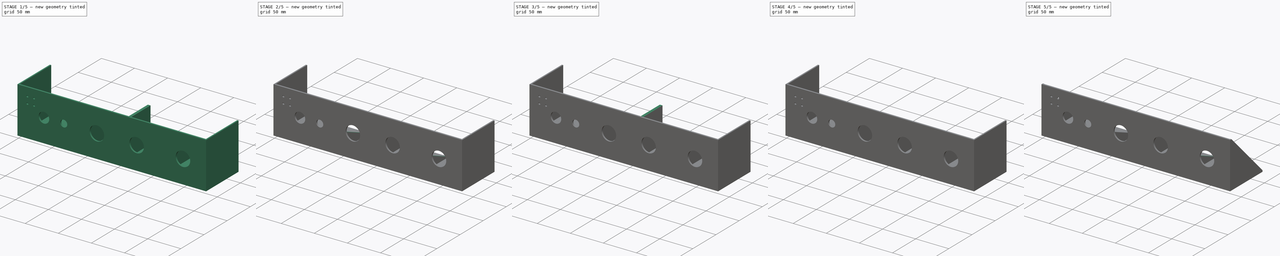
[diagram: build sequence overview — one tinted view per stage of 5, left to right]
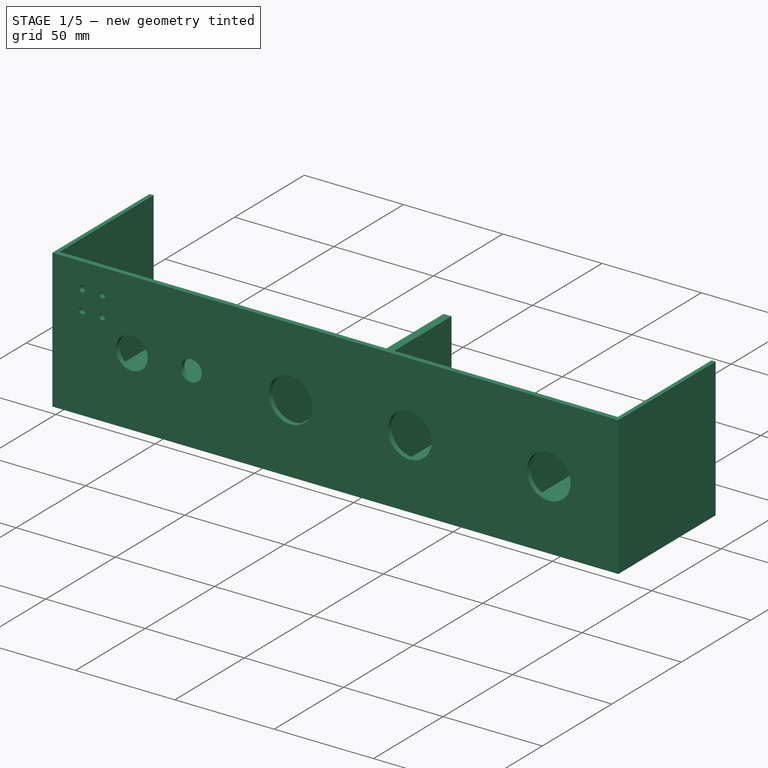
[diagram: stage 1 of 5 — iso view after this stage's code; geometry added in this stage tinted green]
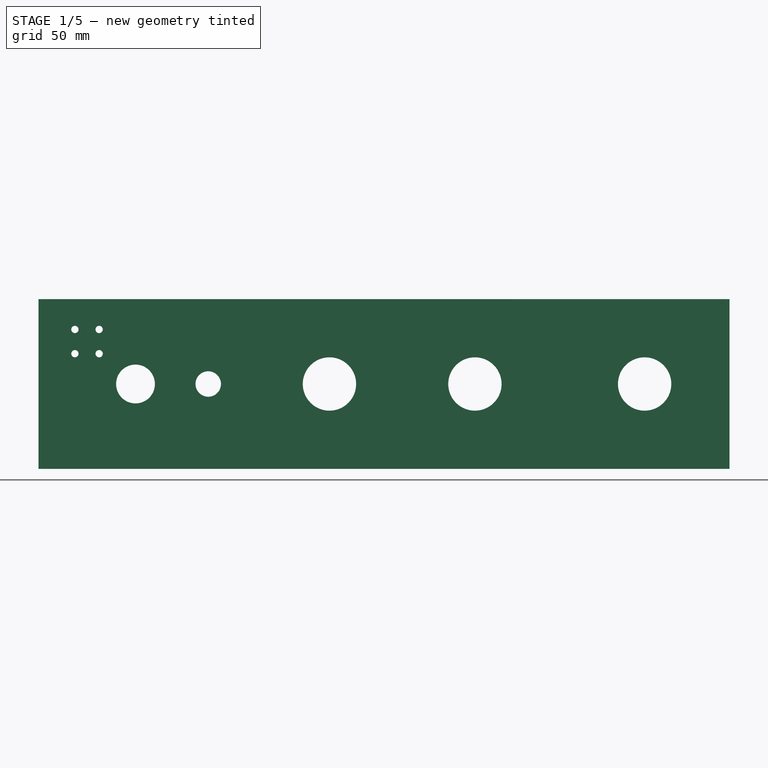
[diagram: stage 1 of 5 — front view after this stage's code; geometry added in this stage tinted green]
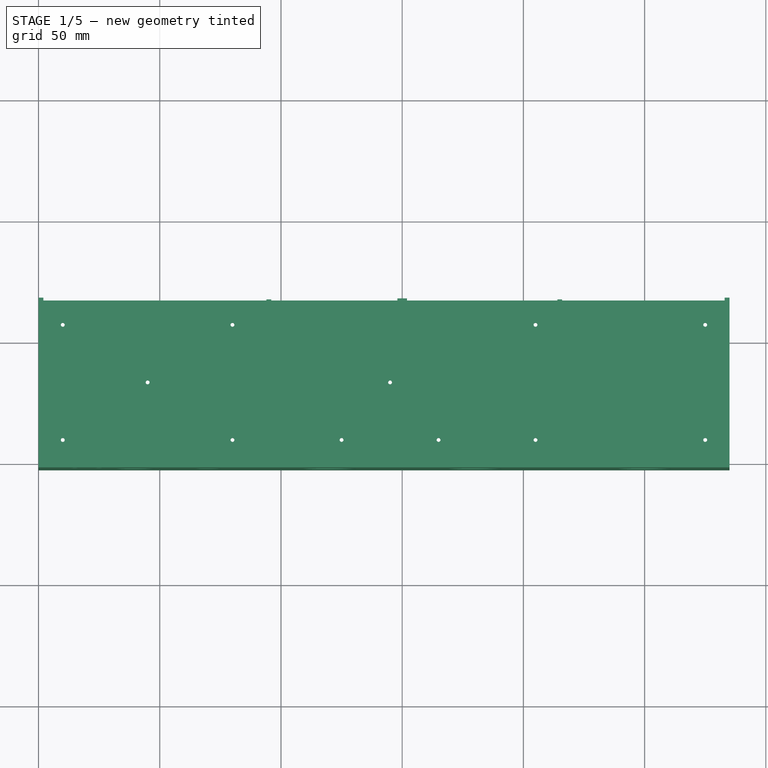
[diagram: stage 1 of 5 — top view after this stage's code; geometry added in this stage tinted green]
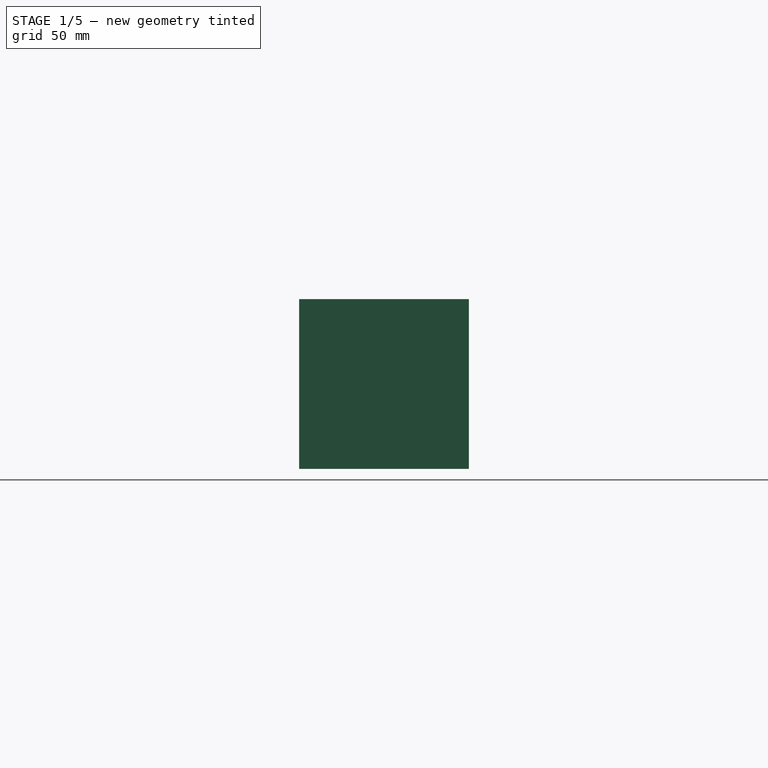
[diagram: stage 1 of 5 — right view after this stage's code; geometry added in this stage tinted green]
FCSTD DOCUMENT  (FreeCAD 0.19R24276 (Git))
Label: schalter_blende
License: All rights reserved
LicenseURL: http://en.wikipedia.org/wiki/All_rights_reserved
objects: Sketcher::SketchObject×10, PartDesign::Chamfer×6, PartDesign::Pad×4, PartDesign::Hole×4, PartDesign::Pocket×2, PartDesign::Body×2, App::Part×1
note: 44 computed .brp shape members not serialized (recipe doc carries the construction recipe); baked Part::Feature solids carry a one-line shape summary decoded from their .brp

FEATURE [Sketcher::SketchObject] Sketch005  label="Loecher001"
  FullyConstrained = true
  MapMode = 5
  Placement = pos=(0,0,0) rot=(1,0,0;1.5708rad)
  Support = -> [XZ_Plane002]
  expr: Constraints[23] = 30 + 20
  sketch-geometry (29):
    g0: LineSegment StartX=0 StartY=0 StartZ=0 EndX=215 EndY=0 EndZ=0
    g1: LineSegment StartX=215 StartY=70 StartZ=0 EndX=0 EndY=70 EndZ=0
    g2: LineSegment StartX=0 StartY=70 StartZ=0 EndX=0 EndY=0 EndZ=0
    g3: Circle CenterX=40 CenterY=35 CenterZ=0 NormalX=0 NormalY=0 NormalZ=1 AngleXU=0 Radius=8
    g4: Circle CenterX=70 CenterY=35 CenterZ=0 NormalX=0 NormalY=0 NormalZ=1 AngleXU=0 Radius=5.25
    g5: Circle CenterX=120 CenterY=35 CenterZ=0 NormalX=0 NormalY=0 NormalZ=1 AngleXU=0 Radius=11
    g6: Circle CenterX=180 CenterY=35 CenterZ=0 NormalX=0 NormalY=0 NormalZ=1 AngleXU=0 Radius=11
    g7: LineSegment StartX=0 StartY=35 StartZ=0 EndX=215 EndY=35 EndZ=0
    g8: Circle CenterX=120 CenterY=35 CenterZ=0 NormalX=0 NormalY=0 NormalZ=1 AngleXU=0 Radius=30
    g9: Circle CenterX=180 CenterY=35 CenterZ=0 NormalX=0 NormalY=0 NormalZ=1 AngleXU=0 Radius=15
    g10: LineSegment StartX=215 StartY=0 StartZ=0 EndX=285 EndY=0 EndZ=0
    g11: LineSegment StartX=285 StartY=0 StartZ=0 EndX=285 EndY=70 EndZ=0
    g12: LineSegment StartX=215 StartY=70 StartZ=0 EndX=285 EndY=70 EndZ=0
    g13: Circle CenterX=250 CenterY=35 CenterZ=0 NormalX=0 NormalY=0 NormalZ=1 AngleXU=0 Radius=11
    g14: LineSegment StartX=215 StartY=35 StartZ=0 EndX=285 EndY=35 EndZ=0
    g15: Circle CenterX=250 CenterY=35 CenterZ=0 NormalX=0 NormalY=0 NormalZ=1 AngleXU=0 Radius=14.5
    g16: LineSegment StartX=215 StartY=0 StartZ=0 EndX=215 EndY=70 EndZ=0
    g17: Circle CenterX=15 CenterY=57.5 CenterZ=0 NormalX=0 NormalY=0 NormalZ=1 AngleXU=0 Radius=1.5
    g18: Circle CenterX=25 CenterY=57.5 CenterZ=0 NormalX=0 NormalY=0 NormalZ=1 AngleXU=0 Radius=1.5
    g19: Circle CenterX=15 CenterY=47.5 CenterZ=0 NormalX=0 NormalY=0 NormalZ=1 AngleXU=0 Radius=1.5
    g20: Circle CenterX=25 CenterY=47.5 CenterZ=0 NormalX=0 NormalY=0 NormalZ=1 AngleXU=0 Radius=1.5
    g21: LineSegment StartX=25 StartY=47.5 StartZ=0 EndX=15 EndY=47.5 EndZ=0
    g22: LineSegment StartX=15 StartY=57.5 StartZ=0 EndX=25 EndY=57.5 EndZ=0
    g23: LineSegment StartX=25 StartY=57.5 StartZ=0 EndX=25 EndY=47.5 EndZ=0
    g24: LineSegment StartX=15 StartY=47.5 StartZ=0 EndX=15 EndY=57.5 EndZ=0
    g25: LineSegment StartX=20 StartY=35 StartZ=0 EndX=20 EndY=70 EndZ=0
    g26: GeomPoint X=20 Y=47.5 Z=0
    g27: LineSegment StartX=20 StartY=52.5 StartZ=0 EndX=0 EndY=52.5 EndZ=0
    g28: GeomPoint X=15 Y=52.5 Z=0
  constraints (74):
    c: Coincident(g1,g2)
    c: Coincident(g2,g0)
    c: Horizontal(g0)
    c: Horizontal(g1)
    c: Vertical(g2)
    c: Coincident(g0,g-1)
    c: Horizontal(g7)
    c: Symmetric(g1,g0,g7)
    c: PointOnObject(g3,g7)
    c: PointOnObject(g4,g7)
    c: PointOnObject(g5,g7)
    c: PointOnObject(g6,g7)
    c: DistanceY(g2,g2) = 70
    c: Radius(g3) = 8
    c: Radius(g4) = 5.25
    c: Radius(g5) = 11
    c: Radius(g6) = 11
    c: Radius(g8) = 30
    c: Radius(g9) = 15
    c: Coincident(g9,g6)
    c: Coincident(g8,g5)
    c: Distance(g3,g2) = 40
    c: DistanceX(g3,g4) = 30
    c: DistanceX(g4,g5) = 50
    c: DistanceX(g5,g6) = 60
    c: DistanceX(g6,g7) = 35
    c: Coincident(g10,g0)
    c: PointOnObject(g10,g-1)
    c: Coincident(g11,g10)
    c: Vertical(g11)
    c: Coincident(g12,g1)
    c: Coincident(g12,g11)
    c: Horizontal(g12)
    c: Coincident(g14,g7)
    c: PointOnObject(g14,g11)
    c: Horizontal(g14)
    c: PointOnObject(g13,g14)
    c: DistanceX(g7,g13) = 35
    c: DistanceX(g13,g14) = 35
    c: Radius(g13) = 11
    c: Coincident(g15,g13)
    c: Radius(g15) = 14.5
    c: Coincident(g16,g0)
    c: Coincident(g16,g1)
    c: Vertical(g16)
    c: PointOnObject(g7,g16)
    c: Equal(g20,g19)
    c: Equal(g19,g17)
    c: Equal(g17,g18)
    c: Radius(g17) = 1.5
    c: Coincident(g21,g20)
    c: Coincident(g21,g19)
    c: Coincident(g22,g17)
    c: Coincident(g22,g18)
    c: Horizontal(g22)
    c: Horizontal(g21)
    c: Coincident(g23,g18)
    c: Coincident(g23,g20)
    c: Vertical(g23)
    c: Coincident(g24,g19)
    c: Coincident(g24,g17)
    c: Vertical(g24)
    c: Distance(g21) = 10
    c: Equal(g23,g21)
    c: PointOnObject(g25,g1)
    c: Vertical(g25)
    c: Symmetric(g7,g3,g25)
    c: Symmetric(g19,g20,g26)
    c: PointOnObject(g26,g25)
    c: PointOnObject(g27,g2)
    c: Horizontal(g27)
    c: Symmetric(g25,g25,g27)
    c: Symmetric(g19,g17,g28)
    c: PointOnObject(g28,g27)
FEATURE [PartDesign::Pad] Pad002
  AllowMultiFace = false
  Direction = (1,1,1)
  Length = 2.5
  Length2 = 100
  Placement = pos=(0,0,0) rot=(1,0,0;1.5708rad)
  Profile = -> Sketch005
  Type = 0
FEATURE [Sketcher::SketchObject] Sketch006  label="Querstreben001"
  ExternalGeometry = -> [Pad002]
  FullyConstrained = false
  MapMode = 5
  Placement = pos=(0,-1e-16,0) rot=(-1,0,0;1.5708rad)
  Support = -> [Pad002]
  sketch-geometry (26):
    g0: LineSegment StartX=0 StartY=0 StartZ=0 EndX=0 EndY=-70 EndZ=0
    g1: LineSegment StartX=283 StartY=-2 StartZ=0 EndX=216 EndY=-2 EndZ=0
    g2: LineSegment StartX=216 StartY=-2 StartZ=0 EndX=216 EndY=-30 EndZ=0
    g3: LineSegment StartX=216 StartY=-30 StartZ=0 EndX=214 EndY=-30 EndZ=0
    g4: LineSegment StartX=214 StartY=-30 StartZ=0 EndX=214 EndY=-2 EndZ=0
    g5: LineSegment StartX=214 StartY=-2 StartZ=0 EndX=152 EndY=-2 EndZ=0
    g6: LineSegment StartX=152 StartY=-2 StartZ=0 EndX=152 EndY=-55 EndZ=0
    g7: LineSegment StartX=152 StartY=-55 StartZ=0 EndX=148 EndY=-55 EndZ=0
    g8: LineSegment StartX=148 StartY=-55 StartZ=0 EndX=148 EndY=-2 EndZ=0
    g9: LineSegment StartX=148 StartY=-2 StartZ=0 EndX=96 EndY=-2 EndZ=0
    g10: LineSegment StartX=96 StartY=-2 StartZ=0 EndX=96 EndY=-30 EndZ=0
    g11: LineSegment StartX=96 StartY=-30 StartZ=0 EndX=94 EndY=-30 EndZ=0
    g12: LineSegment StartX=94 StartY=-30 StartZ=0 EndX=94 EndY=-2 EndZ=0
    g13: LineSegment StartX=96 StartY=-30 StartZ=0 EndX=285 EndY=-30 EndZ=0
    g14: LineSegment StartX=250 StartY=-35 StartZ=0 EndX=70 EndY=-35 EndZ=0
    g15: GeomPoint X=215 Y=-35 Z=0
    g16: GeomPoint X=150 Y=-35 Z=0
    g17: GeomPoint X=95 Y=-35 Z=0
    g18: LineSegment StartX=0 StartY=-2 StartZ=0 EndX=285 EndY=-2 EndZ=0
    g19: LineSegment StartX=2 StartY=-70 StartZ=0 EndX=2 EndY=-2 EndZ=0
    g20: LineSegment StartX=2 StartY=-2 StartZ=0 EndX=94 EndY=-2 EndZ=0
    g21: LineSegment StartX=283 StartY=-2 StartZ=0 EndX=283 EndY=-70 EndZ=0
    g22: LineSegment StartX=283 StartY=-70 StartZ=0 EndX=285 EndY=-70 EndZ=0
    g23: LineSegment StartX=285 StartY=-70 StartZ=0 EndX=285 EndY=0 EndZ=0
    g24: LineSegment StartX=0 StartY=0 StartZ=0 EndX=285 EndY=0 EndZ=0
    g25: LineSegment StartX=0 StartY=-70 StartZ=0 EndX=2 EndY=-70 EndZ=0
  constraints (56):
    c: Vertical(g0)
    c: Coincident(g2,g1)
    c: Vertical(g2)
    c: Coincident(g3,g2)
    c: Horizontal(g3)
    c: Coincident(g4,g3)
    c: Vertical(g4)
    c: Coincident(g5,g4)
    c: Coincident(g6,g5)
    c: Vertical(g6)
    c: Coincident(g7,g6)
    c: Horizontal(g7)
    c: Coincident(g8,g7)
    c: Vertical(g8)
    c: Coincident(g9,g8)
    c: Coincident(g10,g9)
    c: Vertical(g10)
    c: Coincident(g11,g10)
    c: Coincident(g12,g11)
    c: Vertical(g12)
    c: Horizontal(g11)
    c: Coincident(g13,g10)
    c: Horizontal(g13)
    c: DistanceX(g11,g11) = 2
    c: Distance(g7) = 4
    c: DistanceX(g3,g3) = 2
    c: PointOnObject(g2,g13)
    c: DistanceX(g3,g15) = 1
    c: DistanceX(g7,g16) = 2
    c: DistanceX(g11,g17) = 1
    c: PointOnObject(g18,g-2)
    c: Horizontal(g18)
    c: PointOnObject(g1,g18)
    c: PointOnObject(g4,g18)
    c: Horizontal(g1)
    c: Horizontal(g5)
    c: Horizontal(g9)
    c: PointOnObject(g8,g18)
    c: PointOnObject(g12,g18)
    c: Coincident(g-1,g0)
    c: PointOnObject(g19,g18)
    c: Vertical(g19)
    c: Coincident(g20,g19)
    c: Coincident(g12,g20)
    c: Coincident(g21,g1)
    c: Vertical(g21)
    c: Coincident(g22,g21)
    c: Coincident(g23,g22)
    c: DistanceX(g22,g22) = 2
    c: PointOnObject(g13,g23)
    c: DistanceY(g13,g23) = 30
    c: Coincident(g24,g0)
    c: Coincident(g24,g23)
    c: Coincident(g25,g0)
    c: Coincident(g25,g19)
    c: Distance(g25) = 2
FEATURE [PartDesign::Pad] Pad003
  AllowMultiFace = false
  BaseFeature = -> Pad002
  Direction = (0,1,1)
  Length = 67.5
  Length2 = 100
  Placement = pos=(0,0,0) rot=(1,0,0;1.5708rad)
  Profile = -> Sketch006
  Type = 0
  expr: Length = 70 - 2.5
FEATURE [Sketcher::SketchObject] Sketch007
  ExternalGeometry = -> [Pad003]
  FullyConstrained = false
  MapMode = 5
  Placement = pos=(0,0,0) rot=(1,0,0;3.14159rad)
  sketch-geometry (29):
    g0: GeomPoint X=10 Y=-10 Z=0
    g1: GeomPoint X=10 Y=-57.5 Z=0
    g2: GeomPoint X=45 Y=-33.75 Z=0
    g3: GeomPoint X=80 Y=-10 Z=0
    g4: GeomPoint X=80 Y=-57.5 Z=0
    g5: GeomPoint X=145 Y=-33.75 Z=0
    g6: GeomPoint X=205 Y=-10 Z=0
    g7: GeomPoint X=205 Y=-57.5 Z=0
    g8: LineSegment StartX=10 StartY=-10 StartZ=0 EndX=205 EndY=-10 EndZ=0
    g9: LineSegment StartX=80 StartY=-57.5 StartZ=0 EndX=80 EndY=-10 EndZ=0
    g10: LineSegment StartX=45 StartY=-33.75 StartZ=0 EndX=145 EndY=-33.75 EndZ=0
    g11: LineSegment StartX=10 StartY=-57.5 StartZ=0 EndX=205 EndY=-57.5 EndZ=0
    g12: GeomPoint X=80 Y=-33.75 Z=0
    g13: LineSegment StartX=205 StartY=-57.5 StartZ=0 EndX=205 EndY=-10 EndZ=0
    g14: Circle CenterX=10 CenterY=-10 CenterZ=0 NormalX=0 NormalY=0 NormalZ=1 AngleXU=0 Radius=1.5
    g15: Circle CenterX=10 CenterY=-57.5 CenterZ=0 NormalX=0 NormalY=0 NormalZ=1 AngleXU=0 Radius=1.5
    g16: Circle CenterX=80 CenterY=-57.5 CenterZ=0 NormalX=0 NormalY=0 NormalZ=1 AngleXU=0 Radius=1.5
    g17: Circle CenterX=45 CenterY=-33.75 CenterZ=0 NormalX=0 NormalY=0 NormalZ=1 AngleXU=0 Radius=1.5
    g18: Circle CenterX=80 CenterY=-10 CenterZ=0 NormalX=0 NormalY=0 NormalZ=1 AngleXU=0 Radius=1.5
    g19: Circle CenterX=145 CenterY=-33.75 CenterZ=0 NormalX=0 NormalY=0 NormalZ=1 AngleXU=0 Radius=1.5
    g20: Circle CenterX=205 CenterY=-57.5 CenterZ=0 NormalX=0 NormalY=0 NormalZ=1 AngleXU=0 Radius=1.5
    g21: Circle CenterX=205 CenterY=-10 CenterZ=0 NormalX=0 NormalY=0 NormalZ=1 AngleXU=0 Radius=1.5
    g22: Circle CenterX=125 CenterY=-10 CenterZ=0 NormalX=0 NormalY=0 NormalZ=1 AngleXU=0 Radius=1.5
    g23: Circle CenterX=165 CenterY=-10 CenterZ=0 NormalX=0 NormalY=0 NormalZ=1 AngleXU=0 Radius=1.5
    g24: Circle CenterX=275 CenterY=-10 CenterZ=0 NormalX=0 NormalY=0 NormalZ=1 AngleXU=0 Radius=1.5
    g25: Circle CenterX=275 CenterY=-57.5 CenterZ=0 NormalX=0 NormalY=0 NormalZ=1 AngleXU=0 Radius=1.5
    g26: LineSegment StartX=205 StartY=-10 StartZ=0 EndX=275 EndY=-10 EndZ=0
    g27: LineSegment StartX=205 StartY=-57.5 StartZ=0 EndX=275 EndY=-57.5 EndZ=0
    g28: LineSegment StartX=275 StartY=-57.5 StartZ=0 EndX=275 EndY=-10 EndZ=0
  constraints (58):
    c: Coincident(g8,g0)
    c: Coincident(g8,g6)
    c: Horizontal(g8)
    c: PointOnObject(g3,g8)
    c: Coincident(g9,g4)
    c: Vertical(g9)
    c: Coincident(g9,g3)
    c: Coincident(g10,g2)
    c: Coincident(g10,g5)
    c: Horizontal(g10)
    c: Coincident(g11,g1)
    c: Coincident(g11,g7)
    c: Horizontal(g11)
    c: PointOnObject(g4,g11)
    c: PointOnObject(g12,g10)
    c: Symmetric(g4,g3,g12)
    c: DistanceX(g-1,g2) = 45
    c: DistanceX(g-1,g0) = 10
    c: DistanceX(g-2,g3) = 80
    c: DistanceX(g-2,g1) = 10
    c: Coincident(g13,g7)
    c: Coincident(g13,g6)
    c: Vertical(g13)
    c: Coincident(g15,g1)
    c: Coincident(g16,g4)
    c: Coincident(g17,g2)
    c: Coincident(g18,g3)
    c: Coincident(g20,g7)
    c: Coincident(g21,g6)
    c: Coincident(g0,g14)
    c: Equal(g14,g15)
    c: Equal(g15,g17)
    c: Equal(g17,g16)
    c: Equal(g16,g18)
    c: Equal(g18,g19)
    c: Equal(g19,g20)
    c: Equal(g20,g21)
    c: Radius(g14) = 1.5
    c: Coincident(g19,g5)
    c: PointOnObject(g22,g8)
    c: Equal(g23,g22)
    c: Equal(g22,g19)
    c: Symmetric(g6,g22,g23)
    c: DistanceX(g23,g6) = 40
    c: Equal(g25,g20)
    c: Equal(g24,g21)
    c: Coincident(g26,g21)
    c: Coincident(g26,g24)
    c: Horizontal(g26)
    c: Coincident(g27,g20)
    c: Coincident(g27,g25)
    c: Horizontal(g27)
    c: Coincident(g28,g25)
    c: Coincident(g28,g24)
    c: Vertical(g28)
    c: Distance(g21,g24) = 70
    c: DistanceY(g-1,g14) = -10
    c: Distance(g19,g13) = 60
FEATURE [PartDesign::Hole] Hole002
  AllowMultiFace = false
  BaseFeature = -> Pad003
  Depth = 25
  DepthType = 0
  Diameter = 1.6
  DrillForDepth = false
  DrillPoint = 1
  DrillPointAngle = 118
  HoleCutCountersinkAngle = 90
  HoleCutCustomValues = false
  HoleCutDepth = 0
  HoleCutDiameter = 3
  HoleCutType = 0
  ModelActualThread = false
  Placement = pos=(0,0,0) rot=(1,0,0;1.5708rad)
  Profile = -> Sketch007
  Tapered = false
  TaperedAngle = 90
  ThreadAngle = 60
  ThreadClass = 0
  ThreadCutOffInner = 0.032476
  ThreadCutOffOuter = 0.0649519
  ThreadDirection = 0
  ThreadFit = 0
  ThreadPitch = 0.3
  ThreadSize = 3
  ThreadType = 1
  Threaded = false
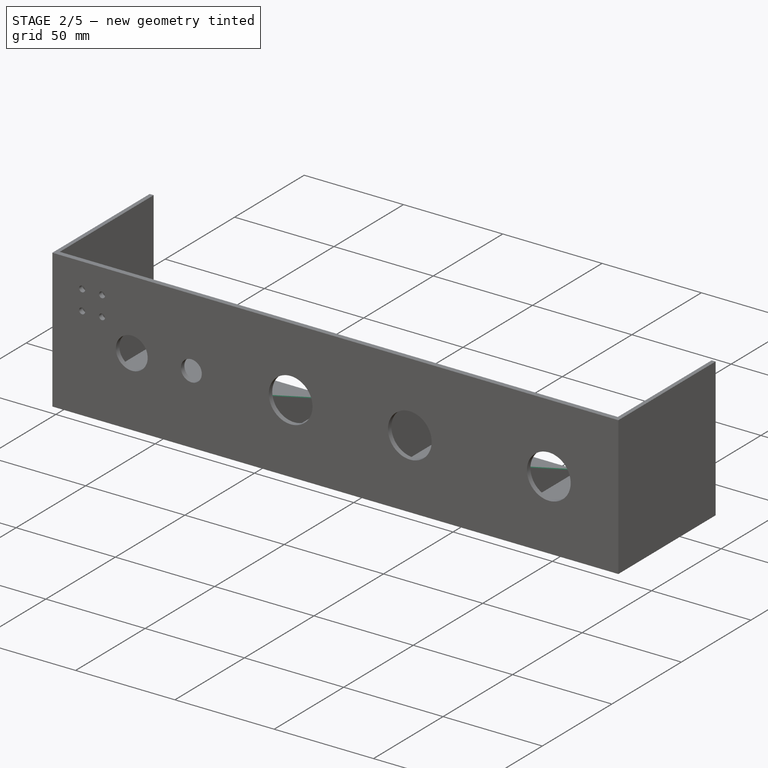
[diagram: stage 2 of 5 — iso view after this stage's code; geometry added in this stage tinted green]
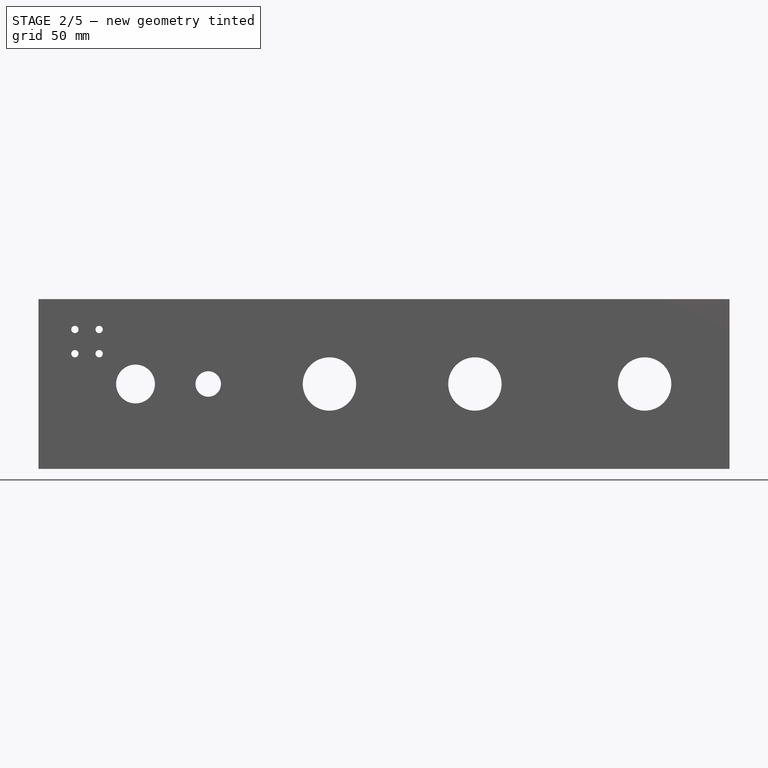
[diagram: stage 2 of 5 — front view after this stage's code; geometry added in this stage tinted green]
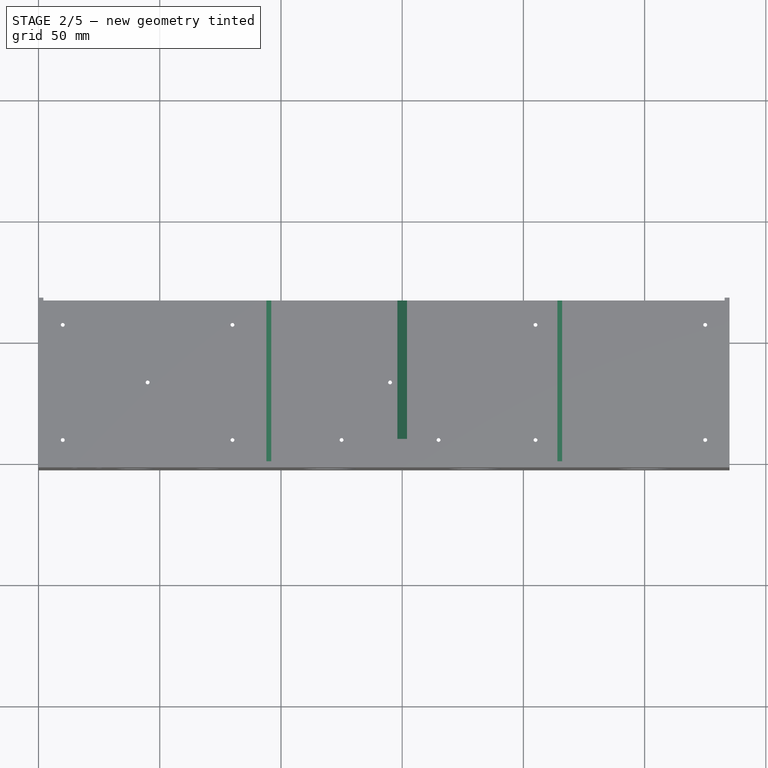
[diagram: stage 2 of 5 — top view after this stage's code; geometry added in this stage tinted green]
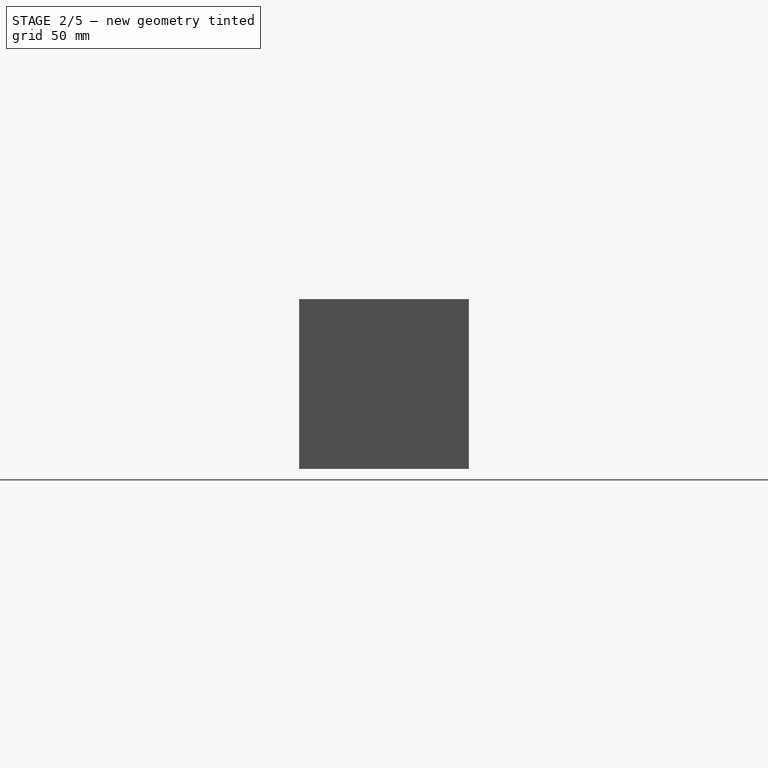
[diagram: stage 2 of 5 — right view after this stage's code; geometry added in this stage tinted green]
FEATURE [Sketcher::SketchObject] Sketch008
  FullyConstrained = false
  MapMode = 5
  Placement = pos=(152,0,0) rot=(0.707107,0,0.707107;3.14159rad)
  sketch-geometry (3):
    g0: Circle CenterX=47.5 CenterY=-7.5 CenterZ=0 NormalX=0 NormalY=0 NormalZ=1 AngleXU=0 Radius=1.5
    g1: Circle CenterX=9.5 CenterY=-7.5 CenterZ=0 NormalX=0 NormalY=0 NormalZ=1 AngleXU=0 Radius=1.5
    g2: LineSegment StartX=9.5 StartY=-7.5 StartZ=0 EndX=47.5 EndY=-7.5 EndZ=0
  constraints (6):
    c: Equal(g1,g0)
    c: Radius(g0) = 1.5
    c: Coincident(g2,g1)
    c: Coincident(g2,g0)
    c: Horizontal(g2)
    c: DistanceY(g0,g-1) = 7.5
FEATURE [PartDesign::Hole] Hole003
  BaseFeature = -> Hole002
  Depth = 25
  DepthType = 0
  Diameter = 2
  DrillForDepth = false
  DrillPoint = 0
  DrillPointAngle = 118
  HoleCutCountersinkAngle = 90
  HoleCutCustomValues = false
  HoleCutDepth = 0
  HoleCutDiameter = 6.1
  HoleCutType = 0
  ModelActualThread = false
  Placement = pos=(0,0,0) rot=(1,0,0;1.5708rad)
  Profile = -> Sketch008
  Tapered = false
  TaperedAngle = 90
  ThreadAngle = 0
  ThreadClass = 0
  ThreadCutOffInner = 0
  ThreadCutOffOuter = 0
  ThreadDirection = 0
  ThreadFit = 0
  ThreadPitch = 0
  ThreadSize = 0
  ThreadType = 0
  Threaded = false
FEATURE [PartDesign::Chamfer] Chamfer005
  Angle = 45
  Base = -> Hole003 [Edge83]
  BaseFeature = -> Hole003
  ChamferType = 1
  FlipDirection = false
  Placement = pos=(0,0,0) rot=(1,0,0;1.5708rad)
  Size = 58
  Size2 = 53
  SupportTransform = false
FEATURE [PartDesign::Chamfer] Chamfer004
  Angle = 45
  Base = -> Chamfer005 [Edge49,Edge50]
  BaseFeature = -> Chamfer005
  ChamferType = 1
  FlipDirection = false
  Placement = pos=(0,0,0) rot=(1,0,0;1.5708rad)
  Size = 28
  Size2 = 67
  SupportTransform = false
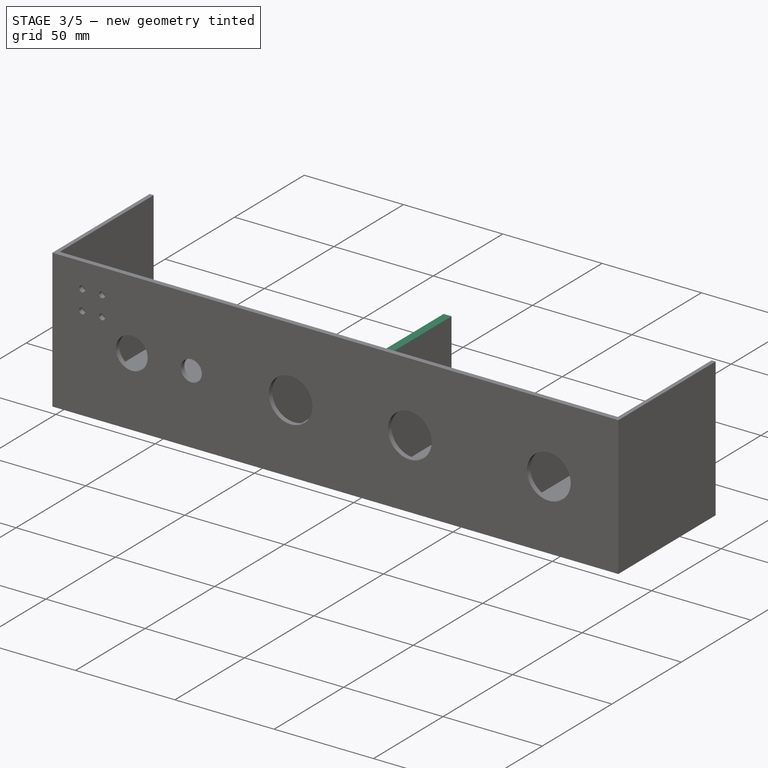
[diagram: stage 3 of 5 — iso view after this stage's code; geometry added in this stage tinted green]
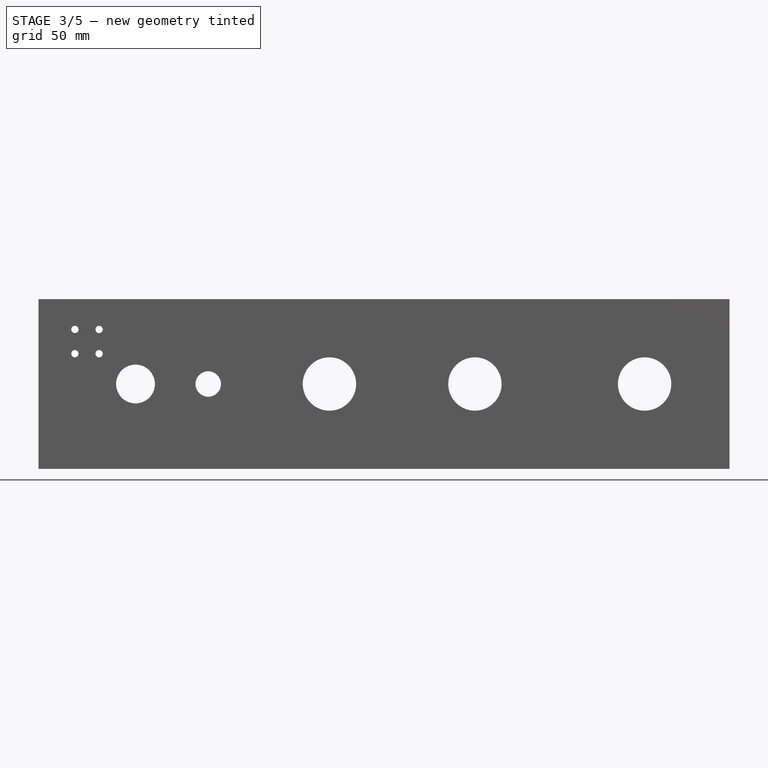
[diagram: stage 3 of 5 — front view after this stage's code; geometry added in this stage tinted green]
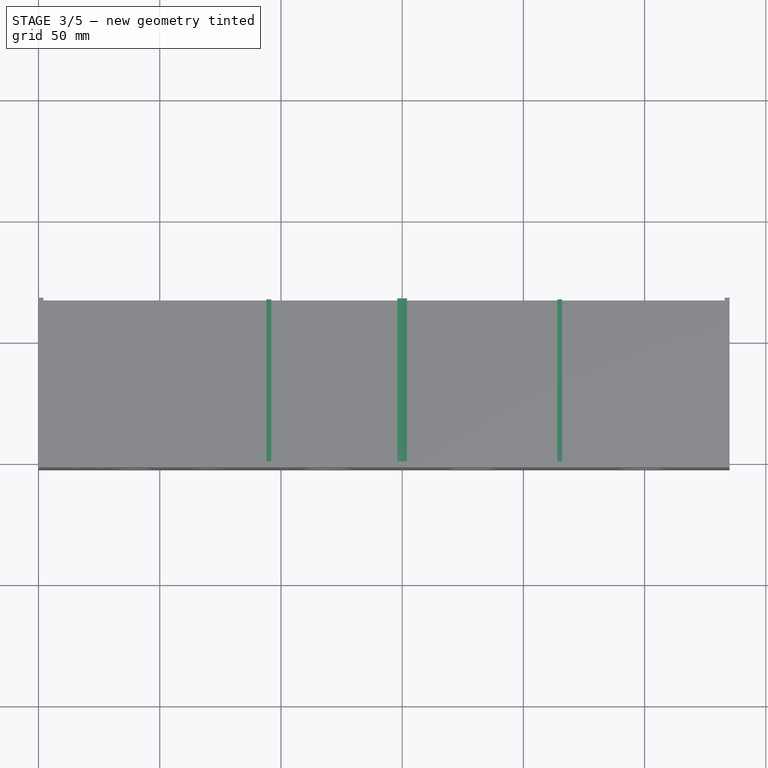
[diagram: stage 3 of 5 — top view after this stage's code; geometry added in this stage tinted green]
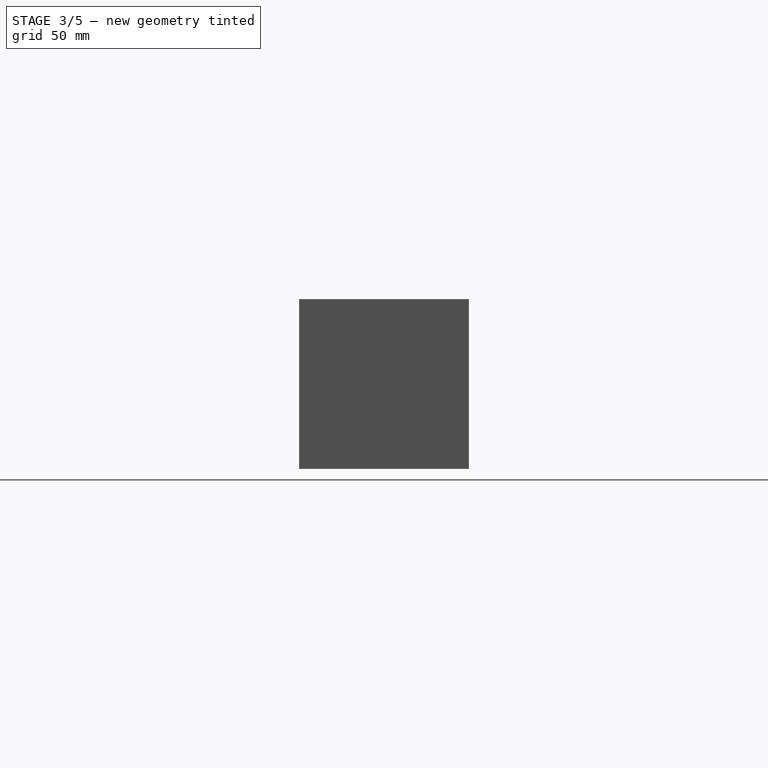
[diagram: stage 3 of 5 — right view after this stage's code; geometry added in this stage tinted green]
FEATURE [Sketcher::SketchObject] Sketch  label="Loecher"
  FullyConstrained = true
  MapMode = 5
  Placement = pos=(0,0,0) rot=(1,0,0;1.5708rad)
  Support = -> [XZ_Plane001]
  expr: Constraints[23] = 30 + 20
  sketch-geometry (29):
    g0: LineSegment StartX=0 StartY=0 StartZ=0 EndX=215 EndY=0 EndZ=0
    g1: LineSegment StartX=215 StartY=70 StartZ=0 EndX=0 EndY=70 EndZ=0
    g2: LineSegment StartX=0 StartY=70 StartZ=0 EndX=0 EndY=0 EndZ=0
    g3: Circle CenterX=40 CenterY=35 CenterZ=0 NormalX=0 NormalY=0 NormalZ=1 AngleXU=0 Radius=8
    g4: Circle CenterX=70 CenterY=35 CenterZ=0 NormalX=0 NormalY=0 NormalZ=1 AngleXU=0 Radius=5.25
    g5: Circle CenterX=120 CenterY=35 CenterZ=0 NormalX=0 NormalY=0 NormalZ=1 AngleXU=0 Radius=11
    g6: Circle CenterX=180 CenterY=35 CenterZ=0 NormalX=0 NormalY=0 NormalZ=1 AngleXU=0 Radius=11
    g7: LineSegment StartX=0 StartY=35 StartZ=0 EndX=215 EndY=35 EndZ=0
    g8: Circle CenterX=120 CenterY=35 CenterZ=0 NormalX=0 NormalY=0 NormalZ=1 AngleXU=0 Radius=30
    g9: Circle CenterX=180 CenterY=35 CenterZ=0 NormalX=0 NormalY=0 NormalZ=1 AngleXU=0 Radius=15
    g10: LineSegment StartX=215 StartY=0 StartZ=0 EndX=285 EndY=0 EndZ=0
    g11: LineSegment StartX=285 StartY=0 StartZ=0 EndX=285 EndY=70 EndZ=0
    g12: LineSegment StartX=215 StartY=70 StartZ=0 EndX=285 EndY=70 EndZ=0
    g13: Circle CenterX=250 CenterY=35 CenterZ=0 NormalX=0 NormalY=0 NormalZ=1 AngleXU=0 Radius=11
    g14: LineSegment StartX=215 StartY=35 StartZ=0 EndX=285 EndY=35 EndZ=0
    g15: Circle CenterX=250 CenterY=35 CenterZ=0 NormalX=0 NormalY=0 NormalZ=1 AngleXU=0 Radius=14.5
    g16: LineSegment StartX=215 StartY=0 StartZ=0 EndX=215 EndY=70 EndZ=0
    g17: Circle CenterX=15 CenterY=57.5 CenterZ=0 NormalX=0 NormalY=0 NormalZ=1 AngleXU=0 Radius=1.5
    g18: Circle CenterX=25 CenterY=57.5 CenterZ=0 NormalX=0 NormalY=0 NormalZ=1 AngleXU=0 Radius=1.5
    g19: Circle CenterX=15 CenterY=47.5 CenterZ=0 NormalX=0 NormalY=0 NormalZ=1 AngleXU=0 Radius=1.5
    g20: Circle CenterX=25 CenterY=47.5 CenterZ=0 NormalX=0 NormalY=0 NormalZ=1 AngleXU=0 Radius=1.5
    g21: LineSegment StartX=25 StartY=47.5 StartZ=0 EndX=15 EndY=47.5 EndZ=0
    g22: LineSegment StartX=15 StartY=57.5 StartZ=0 EndX=25 EndY=57.5 EndZ=0
    g23: LineSegment StartX=25 StartY=57.5 StartZ=0 EndX=25 EndY=47.5 EndZ=0
    g24: LineSegment StartX=15 StartY=47.5 StartZ=0 EndX=15 EndY=57.5 EndZ=0
    g25: LineSegment StartX=20 StartY=35 StartZ=0 EndX=20 EndY=70 EndZ=0
    g26: GeomPoint X=20 Y=47.5 Z=0
    g27: LineSegment StartX=20 StartY=52.5 StartZ=0 EndX=0 EndY=52.5 EndZ=0
    g28: GeomPoint X=15 Y=52.5 Z=0
  constraints (74):
    c: Coincident(g1,g2)
    c: Coincident(g2,g0)
    c: Horizontal(g0)
    c: Horizontal(g1)
    c: Vertical(g2)
    c: Coincident(g0,g-1)
    c: Horizontal(g7)
    c: Symmetric(g1,g0,g7)
    c: PointOnObject(g3,g7)
    c: PointOnObject(g4,g7)
    c: PointOnObject(g5,g7)
    c: PointOnObject(g6,g7)
    c: DistanceY(g2,g2) = 70
    c: Radius(g3) = 8
    c: Radius(g4) = 5.25
    c: Radius(g5) = 11
    c: Radius(g6) = 11
    c: Radius(g8) = 30
    c: Radius(g9) = 15
    c: Coincident(g9,g6)
    c: Coincident(g8,g5)
    c: Distance(g3,g2) = 40
    c: DistanceX(g3,g4) = 30
    c: DistanceX(g4,g5) = 50
    c: DistanceX(g5,g6) = 60
    c: DistanceX(g6,g7) = 35
    c: Coincident(g10,g0)
    c: PointOnObject(g10,g-1)
    c: Coincident(g11,g10)
    c: Vertical(g11)
    c: Coincident(g12,g1)
    c: Coincident(g12,g11)
    c: Horizontal(g12)
    c: Coincident(g14,g7)
    c: PointOnObject(g14,g11)
    c: Horizontal(g14)
    c: PointOnObject(g13,g14)
    c: DistanceX(g7,g13) = 35
    c: DistanceX(g13,g14) = 35
    c: Radius(g13) = 11
    c: Coincident(g15,g13)
    c: Radius(g15) = 14.5
    c: Coincident(g16,g0)
    c: Coincident(g16,g1)
    c: Vertical(g16)
    c: PointOnObject(g7,g16)
    c: Equal(g20,g19)
    c: Equal(g19,g17)
    c: Equal(g17,g18)
    c: Radius(g17) = 1.5
    c: Coincident(g21,g20)
    c: Coincident(g21,g19)
    c: Coincident(g22,g17)
    c: Coincident(g22,g18)
    c: Horizontal(g22)
    c: Horizontal(g21)
    c: Coincident(g23,g18)
    c: Coincident(g23,g20)
    c: Vertical(g23)
    c: Coincident(g24,g19)
    c: Coincident(g24,g17)
    c: Vertical(g24)
    c: Distance(g21) = 10
    c: Equal(g23,g21)
    c: PointOnObject(g25,g1)
    c: Vertical(g25)
    c: Symmetric(g7,g3,g25)
    c: Symmetric(g19,g20,g26)
    c: PointOnObject(g26,g25)
    c: PointOnObject(g27,g2)
    c: Horizontal(g27)
    c: Symmetric(g25,g25,g27)
    c: Symmetric(g19,g17,g28)
    c: PointOnObject(g28,g27)
FEATURE [PartDesign::Pad] Pad
  AllowMultiFace = false
  Direction = (1,1,1)
  Length = 2.5
  Length2 = 100
  Placement = pos=(0,0,0) rot=(1,0,0;1.5708rad)
  Profile = -> Sketch
  Type = 0
FEATURE [Sketcher::SketchObject] Sketch001  label="Querstreben"
  ExternalGeometry = -> [Pad]
  FullyConstrained = false
  MapMode = 5
  Placement = pos=(0,-1e-16,0) rot=(-1,0,0;1.5708rad)
  Support = -> [Pad]
  sketch-geometry (26):
    g0: LineSegment StartX=0 StartY=0 StartZ=0 EndX=0 EndY=-70 EndZ=0
    g1: LineSegment StartX=283 StartY=-2 StartZ=0 EndX=216 EndY=-2 EndZ=0
    g2: LineSegment StartX=216 StartY=-2 StartZ=0 EndX=216 EndY=-30 EndZ=0
    g3: LineSegment StartX=216 StartY=-30 StartZ=0 EndX=214 EndY=-30 EndZ=0
    g4: LineSegment StartX=214 StartY=-30 StartZ=0 EndX=214 EndY=-2 EndZ=0
    g5: LineSegment StartX=214 StartY=-2 StartZ=0 EndX=152 EndY=-2 EndZ=0
    g6: LineSegment StartX=152 StartY=-2 StartZ=0 EndX=152 EndY=-55 EndZ=0
    g7: LineSegment StartX=152 StartY=-55 StartZ=0 EndX=148 EndY=-55 EndZ=0
    g8: LineSegment StartX=148 StartY=-55 StartZ=0 EndX=148 EndY=-2 EndZ=0
    g9: LineSegment StartX=148 StartY=-2 StartZ=0 EndX=96 EndY=-2 EndZ=0
    g10: LineSegment StartX=96 StartY=-2 StartZ=0 EndX=96 EndY=-30 EndZ=0
    g11: LineSegment StartX=96 StartY=-30 StartZ=0 EndX=94 EndY=-30 EndZ=0
    g12: LineSegment StartX=94 StartY=-30 StartZ=0 EndX=94 EndY=-2 EndZ=0
    g13: LineSegment StartX=96 StartY=-30 StartZ=0 EndX=285 EndY=-30 EndZ=0
    g14: LineSegment StartX=250 StartY=-35 StartZ=0 EndX=70 EndY=-35 EndZ=0
    g15: GeomPoint X=215 Y=-35 Z=0
    g16: GeomPoint X=150 Y=-35 Z=0
    g17: GeomPoint X=95 Y=-35 Z=0
    g18: LineSegment StartX=0 StartY=-2 StartZ=0 EndX=285 EndY=-2 EndZ=0
    g19: LineSegment StartX=2 StartY=-70 StartZ=0 EndX=2 EndY=-2 EndZ=0
    g20: LineSegment StartX=2 StartY=-2 StartZ=0 EndX=94 EndY=-2 EndZ=0
    g21: LineSegment StartX=283 StartY=-2 StartZ=0 EndX=283 EndY=-70 EndZ=0
    g22: LineSegment StartX=283 StartY=-70 StartZ=0 EndX=285 EndY=-70 EndZ=0
    g23: LineSegment StartX=285 StartY=-70 StartZ=0 EndX=285 EndY=0 EndZ=0
    g24: LineSegment StartX=0 StartY=0 StartZ=0 EndX=285 EndY=0 EndZ=0
    g25: LineSegment StartX=0 StartY=-70 StartZ=0 EndX=2 EndY=-70 EndZ=0
  constraints (56):
    c: Vertical(g0)
    c: Coincident(g2,g1)
    c: Vertical(g2)
    c: Coincident(g3,g2)
    c: Horizontal(g3)
    c: Coincident(g4,g3)
    c: Vertical(g4)
    c: Coincident(g5,g4)
    c: Coincident(g6,g5)
    c: Vertical(g6)
    c: Coincident(g7,g6)
    c: Horizontal(g7)
    c: Coincident(g8,g7)
    c: Vertical(g8)
    c: Coincident(g9,g8)
    c: Coincident(g10,g9)
    c: Vertical(g10)
    c: Coincident(g11,g10)
    c: Coincident(g12,g11)
    c: Vertical(g12)
    c: Horizontal(g11)
    c: Coincident(g13,g10)
    c: Horizontal(g13)
    c: DistanceX(g11,g11) = 2
    c: Distance(g7) = 4
    c: DistanceX(g3,g3) = 2
    c: PointOnObject(g2,g13)
    c: DistanceX(g3,g15) = 1
    c: DistanceX(g7,g16) = 2
    c: DistanceX(g11,g17) = 1
    c: PointOnObject(g18,g-2)
    c: Horizontal(g18)
    c: PointOnObject(g1,g18)
    c: PointOnObject(g4,g18)
    c: Horizontal(g1)
    c: Horizontal(g5)
    c: Horizontal(g9)
    c: PointOnObject(g8,g18)
    c: PointOnObject(g12,g18)
    c: Coincident(g-1,g0)
    c: PointOnObject(g19,g18)
    c: Vertical(g19)
    c: Coincident(g20,g19)
    c: Coincident(g12,g20)
    c: Coincident(g21,g1)
    c: Vertical(g21)
    c: Coincident(g22,g21)
    c: Coincident(g23,g22)
    c: DistanceX(g22,g22) = 2
    c: PointOnObject(g13,g23)
    c: DistanceY(g13,g23) = 30
    c: Coincident(g24,g0)
    c: Coincident(g24,g23)
    c: Coincident(g25,g0)
    c: Coincident(g25,g19)
    c: Distance(g25) = 2
FEATURE [PartDesign::Pad] Pad001
  AllowMultiFace = false
  BaseFeature = -> Pad
  Direction = (0,1,1)
  Length = 67.5
  Length2 = 100
  Placement = pos=(0,0,0) rot=(1,0,0;1.5708rad)
  Profile = -> Sketch001
  Type = 0
  expr: Length = 70 - 2.5
FEATURE [PartDesign::Chamfer] Chamfer003  label="Scheiding001"
  Angle = 45
  Base = -> Chamfer004 [Edge6,Edge14]
  BaseFeature = -> Chamfer004
  ChamferType = 1
  FlipDirection = false
  Placement = pos=(0,0,0) rot=(1,0,0;1.5708rad)
  Size = 68
  Size2 = 67
  SupportTransform = false
FEATURE [PartDesign::Body] Body  label="DingR"
  Group = -> [Sketch,Pad,Sketch001,Pad001,Sketch003,Hole,Sketch004,Hole001,Chamfer,Chamfer001,Chamfer002,Sketch009,Pocket]
  Origin = -> Origin001
  Tip = -> Pocket
FEATURE [App::Part] Part
  Group = -> [Body]
  Origin = -> Origin
FEATURE [Sketcher::SketchObject] Sketch010
  ExternalGeometry = -> [Chamfer003]
  FullyConstrained = true
  MapMode = 5
  Placement = pos=(285,0,0) rot=(0.707107,0,0.707107;3.14159rad)
  Support = -> [Chamfer003]
  sketch-geometry (5):
    g0: LineSegment StartX=70 StartY=-0.5 StartZ=0 EndX=2 EndY=-67.5 EndZ=0
    g1: LineSegment StartX=2 StartY=-67.5 StartZ=0 EndX=0 EndY=-67.5 EndZ=0
    g2: LineSegment StartX=0 StartY=-67.5 StartZ=0 EndX=0 EndY=2.5 EndZ=0
    g3: LineSegment StartX=0 StartY=2.5 StartZ=0 EndX=70 EndY=2.5 EndZ=0
    g4: LineSegment StartX=70 StartY=2.5 StartZ=0 EndX=70 EndY=-0.5 EndZ=0
  constraints (10):
    c: Coincident(g0,g-5)
    c: Coincident(g1,g0)
    c: Coincident(g1,g-5)
    c: Coincident(g2,g1)
    c: Coincident(g2,g-3)
    c: Coincident(g3,g2)
    c: Coincident(g0,g-4)
    c: Coincident(g3,g-3)
    c: Coincident(g4,g3)
    c: Coincident(g4,g0)
FEATURE [PartDesign::Pocket] Pocket001
  BaseFeature = -> Chamfer003
  Length = 135
  Length2 = 100
  Placement = pos=(0,0,0) rot=(1,0,0;1.5708rad)
  Profile = -> Sketch010
  Type = 0
FEATURE [PartDesign::Body] Body001  label="DingL"
  Group = -> [Sketch005,Pad002,Sketch006,Pad003,Sketch007,Hole002,Sketch008,Hole003,Chamfer005,Chamfer004,Chamfer003,Sketch010,Pocket001]
  Origin = -> Origin002
  Placement = pos=(-6,0,0) rot=(0,0,1;0rad)
  Tip = -> Pocket001
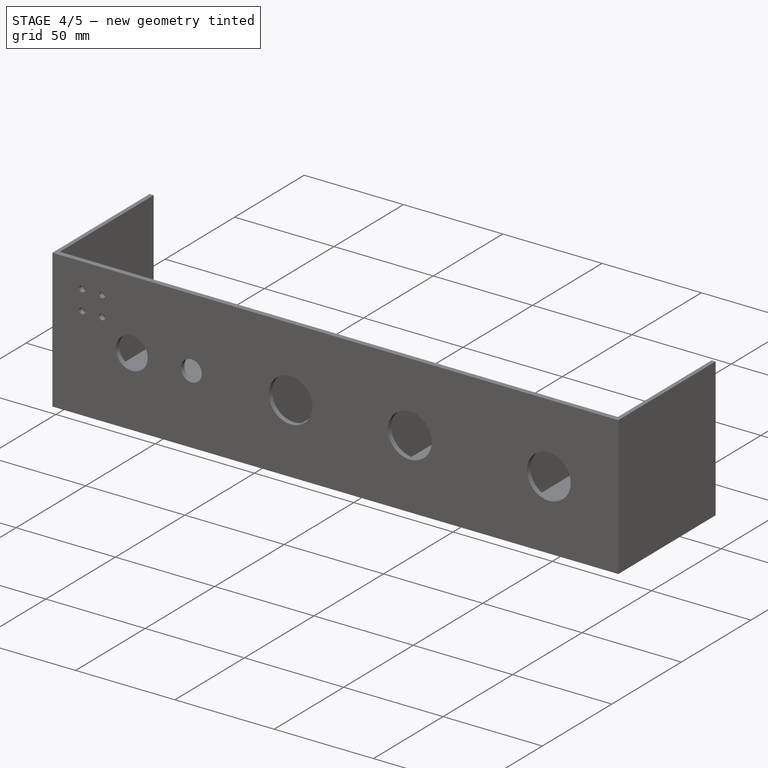
[diagram: stage 4 of 5 — iso view after this stage's code; geometry added in this stage tinted green]
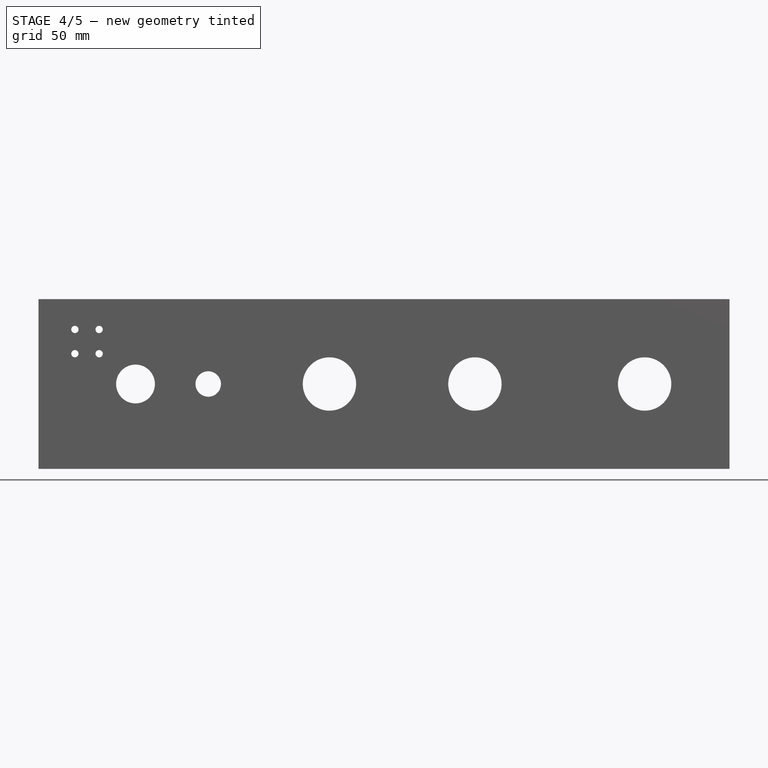
[diagram: stage 4 of 5 — front view after this stage's code; geometry added in this stage tinted green]
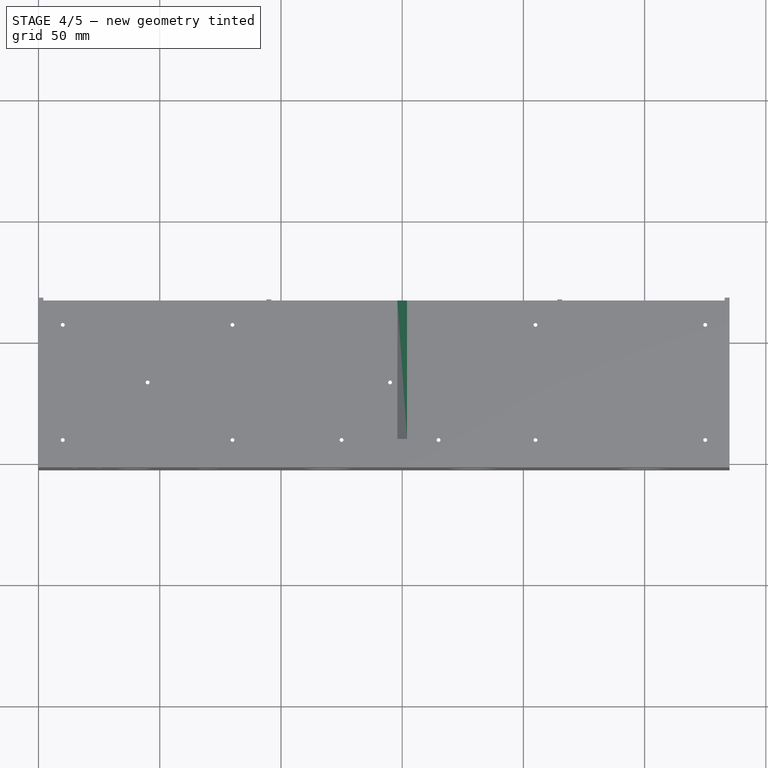
[diagram: stage 4 of 5 — top view after this stage's code; geometry added in this stage tinted green]
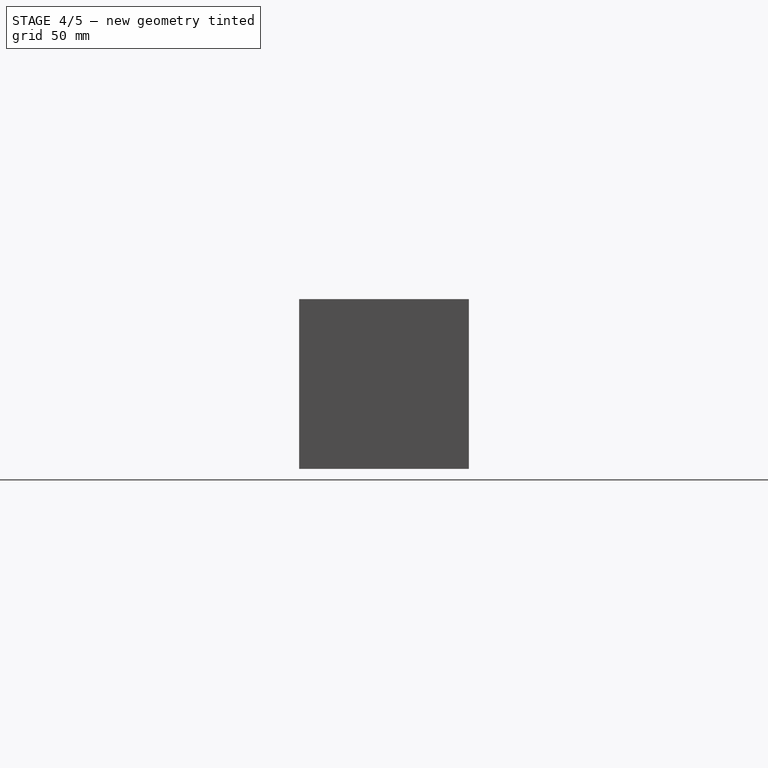
[diagram: stage 4 of 5 — right view after this stage's code; geometry added in this stage tinted green]
FEATURE [Sketcher::SketchObject] Sketch003
  ExternalGeometry = -> [Pad001]
  FullyConstrained = false
  MapMode = 5
  Placement = pos=(0,0,0) rot=(1,0,0;3.14159rad)
  sketch-geometry (29):
    g0: GeomPoint X=10 Y=-10 Z=0
    g1: GeomPoint X=10 Y=-57.5 Z=0
    g2: GeomPoint X=45 Y=-33.75 Z=0
    g3: GeomPoint X=80 Y=-10 Z=0
    g4: GeomPoint X=80 Y=-57.5 Z=0
    g5: GeomPoint X=145 Y=-33.75 Z=0
    g6: GeomPoint X=205 Y=-10 Z=0
    g7: GeomPoint X=205 Y=-57.5 Z=0
    g8: LineSegment StartX=10 StartY=-10 StartZ=0 EndX=205 EndY=-10 EndZ=0
    g9: LineSegment StartX=80 StartY=-57.5 StartZ=0 EndX=80 EndY=-10 EndZ=0
    g10: LineSegment StartX=45 StartY=-33.75 StartZ=0 EndX=145 EndY=-33.75 EndZ=0
    g11: LineSegment StartX=10 StartY=-57.5 StartZ=0 EndX=205 EndY=-57.5 EndZ=0
    g12: GeomPoint X=80 Y=-33.75 Z=0
    g13: LineSegment StartX=205 StartY=-57.5 StartZ=0 EndX=205 EndY=-10 EndZ=0
    g14: Circle CenterX=10 CenterY=-10 CenterZ=0 NormalX=0 NormalY=0 NormalZ=1 AngleXU=0 Radius=1.5
    g15: Circle CenterX=10 CenterY=-57.5 CenterZ=0 NormalX=0 NormalY=0 NormalZ=1 AngleXU=0 Radius=1.5
    g16: Circle CenterX=80 CenterY=-57.5 CenterZ=0 NormalX=0 NormalY=0 NormalZ=1 AngleXU=0 Radius=1.5
    g17: Circle CenterX=45 CenterY=-33.75 CenterZ=0 NormalX=0 NormalY=0 NormalZ=1 AngleXU=0 Radius=1.5
    g18: Circle CenterX=80 CenterY=-10 CenterZ=0 NormalX=0 NormalY=0 NormalZ=1 AngleXU=0 Radius=1.5
    g19: Circle CenterX=145 CenterY=-33.75 CenterZ=0 NormalX=0 NormalY=0 NormalZ=1 AngleXU=0 Radius=1.5
    g20: Circle CenterX=205 CenterY=-57.5 CenterZ=0 NormalX=0 NormalY=0 NormalZ=1 AngleXU=0 Radius=1.5
    g21: Circle CenterX=205 CenterY=-10 CenterZ=0 NormalX=0 NormalY=0 NormalZ=1 AngleXU=0 Radius=1.5
    g22: Circle CenterX=125 CenterY=-10 CenterZ=0 NormalX=0 NormalY=0 NormalZ=1 AngleXU=0 Radius=1.5
    g23: Circle CenterX=165 CenterY=-10 CenterZ=0 NormalX=0 NormalY=0 NormalZ=1 AngleXU=0 Radius=1.5
    g24: Circle CenterX=275 CenterY=-10 CenterZ=0 NormalX=0 NormalY=0 NormalZ=1 AngleXU=0 Radius=1.5
    g25: Circle CenterX=275 CenterY=-57.5 CenterZ=0 NormalX=0 NormalY=0 NormalZ=1 AngleXU=0 Radius=1.5
    g26: LineSegment StartX=205 StartY=-10 StartZ=0 EndX=275 EndY=-10 EndZ=0
    g27: LineSegment StartX=205 StartY=-57.5 StartZ=0 EndX=275 EndY=-57.5 EndZ=0
    g28: LineSegment StartX=275 StartY=-57.5 StartZ=0 EndX=275 EndY=-10 EndZ=0
  constraints (58):
    c: Coincident(g8,g0)
    c: Coincident(g8,g6)
    c: Horizontal(g8)
    c: PointOnObject(g3,g8)
    c: Coincident(g9,g4)
    c: Vertical(g9)
    c: Coincident(g9,g3)
    c: Coincident(g10,g2)
    c: Coincident(g10,g5)
    c: Horizontal(g10)
    c: Coincident(g11,g1)
    c: Coincident(g11,g7)
    c: Horizontal(g11)
    c: PointOnObject(g4,g11)
    c: PointOnObject(g12,g10)
    c: Symmetric(g4,g3,g12)
    c: DistanceX(g-1,g2) = 45
    c: DistanceX(g-1,g0) = 10
    c: DistanceX(g-2,g3) = 80
    c: DistanceX(g-2,g1) = 10
    c: Coincident(g13,g7)
    c: Coincident(g13,g6)
    c: Vertical(g13)
    c: Coincident(g15,g1)
    c: Coincident(g16,g4)
    c: Coincident(g17,g2)
    c: Coincident(g18,g3)
    c: Coincident(g20,g7)
    c: Coincident(g21,g6)
    c: Coincident(g0,g14)
    c: Equal(g14,g15)
    c: Equal(g15,g17)
    c: Equal(g17,g16)
    c: Equal(g16,g18)
    c: Equal(g18,g19)
    c: Equal(g19,g20)
    c: Equal(g20,g21)
    c: Radius(g14) = 1.5
    c: Coincident(g19,g5)
    c: PointOnObject(g22,g8)
    c: Equal(g23,g22)
    c: Equal(g22,g19)
    c: Symmetric(g6,g22,g23)
    c: DistanceX(g23,g6) = 40
    c: Equal(g25,g20)
    c: Equal(g24,g21)
    c: Coincident(g26,g21)
    c: Coincident(g26,g24)
    c: Horizontal(g26)
    c: Coincident(g27,g20)
    c: Coincident(g27,g25)
    c: Horizontal(g27)
    c: Coincident(g28,g25)
    c: Coincident(g28,g24)
    c: Vertical(g28)
    c: Distance(g21,g24) = 70
    c: DistanceY(g-1,g14) = -10
    c: Distance(g19,g13) = 60
FEATURE [PartDesign::Hole] Hole
  AllowMultiFace = false
  BaseFeature = -> Pad001
  Depth = 25
  DepthType = 0
  Diameter = 1.6
  DrillForDepth = false
  DrillPoint = 1
  DrillPointAngle = 118
  HoleCutCountersinkAngle = 90
  HoleCutCustomValues = false
  HoleCutDepth = 0
  HoleCutDiameter = 3
  HoleCutType = 0
  ModelActualThread = false
  Placement = pos=(0,0,0) rot=(1,0,0;1.5708rad)
  Profile = -> Sketch003
  Tapered = false
  TaperedAngle = 90
  ThreadAngle = 60
  ThreadClass = 0
  ThreadCutOffInner = 0.032476
  ThreadCutOffOuter = 0.0649519
  ThreadDirection = 0
  ThreadFit = 0
  ThreadPitch = 0.3
  ThreadSize = 3
  ThreadType = 1
  Threaded = false
FEATURE [Sketcher::SketchObject] Sketch004
  FullyConstrained = false
  MapMode = 5
  Placement = pos=(152,0,0) rot=(0.707107,0,0.707107;3.14159rad)
  sketch-geometry (3):
    g0: Circle CenterX=47.5 CenterY=-7.5 CenterZ=0 NormalX=0 NormalY=0 NormalZ=1 AngleXU=0 Radius=1.5
    g1: Circle CenterX=9.5 CenterY=-7.5 CenterZ=0 NormalX=0 NormalY=0 NormalZ=1 AngleXU=0 Radius=1.5
    g2: LineSegment StartX=9.5 StartY=-7.5 StartZ=0 EndX=47.5 EndY=-7.5 EndZ=0
  constraints (6):
    c: Equal(g1,g0)
    c: Radius(g0) = 1.5
    c: Coincident(g2,g1)
    c: Coincident(g2,g0)
    c: Horizontal(g2)
    c: DistanceY(g0,g-1) = 7.5
FEATURE [PartDesign::Hole] Hole001
  BaseFeature = -> Hole
  Depth = 25
  DepthType = 0
  Diameter = 2
  DrillForDepth = false
  DrillPoint = 0
  DrillPointAngle = 118
  HoleCutCountersinkAngle = 90
  HoleCutCustomValues = false
  HoleCutDepth = 0
  HoleCutDiameter = 6.1
  HoleCutType = 0
  ModelActualThread = false
  Placement = pos=(0,0,0) rot=(1,0,0;1.5708rad)
  Profile = -> Sketch004
  Tapered = false
  TaperedAngle = 90
  ThreadAngle = 0
  ThreadClass = 0
  ThreadCutOffInner = 0
  ThreadCutOffOuter = 0
  ThreadDirection = 0
  ThreadFit = 0
  ThreadPitch = 0
  ThreadSize = 0
  ThreadType = 0
  Threaded = false
FEATURE [PartDesign::Chamfer] Chamfer
  Angle = 45
  Base = -> Hole001 [Edge83]
  BaseFeature = -> Hole001
  ChamferType = 1
  FlipDirection = false
  Placement = pos=(0,0,0) rot=(1,0,0;1.5708rad)
  Size = 58
  Size2 = 53
  SupportTransform = false
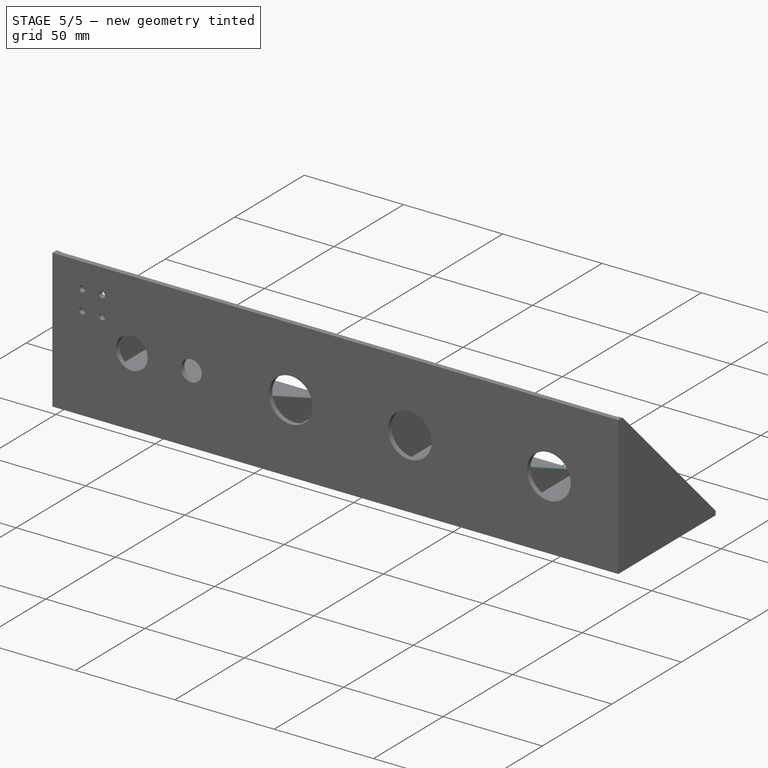
[diagram: stage 5 of 5 — iso view after this stage's code; geometry added in this stage tinted green]
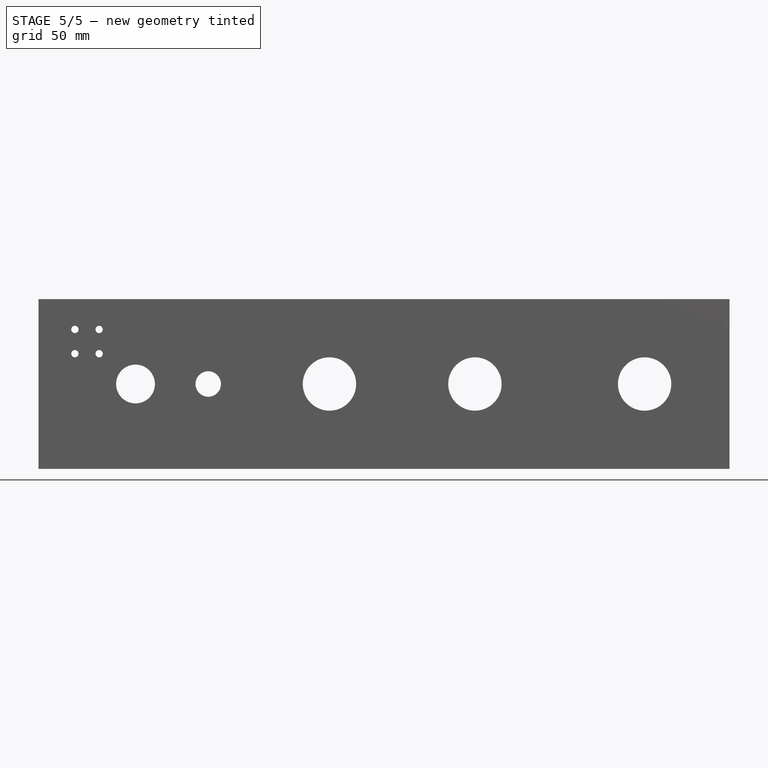
[diagram: stage 5 of 5 — front view after this stage's code; geometry added in this stage tinted green]
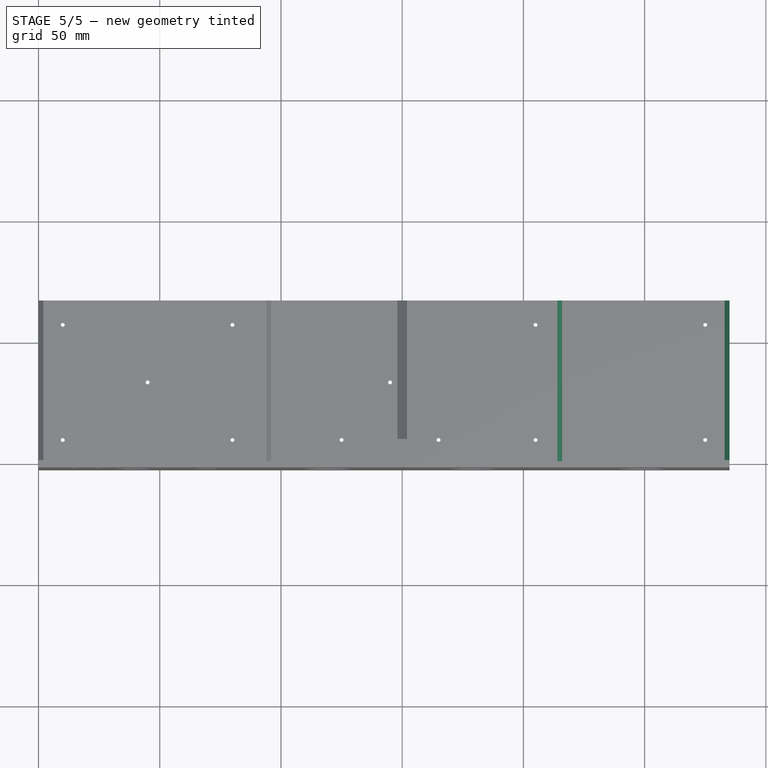
[diagram: stage 5 of 5 — top view after this stage's code; geometry added in this stage tinted green]
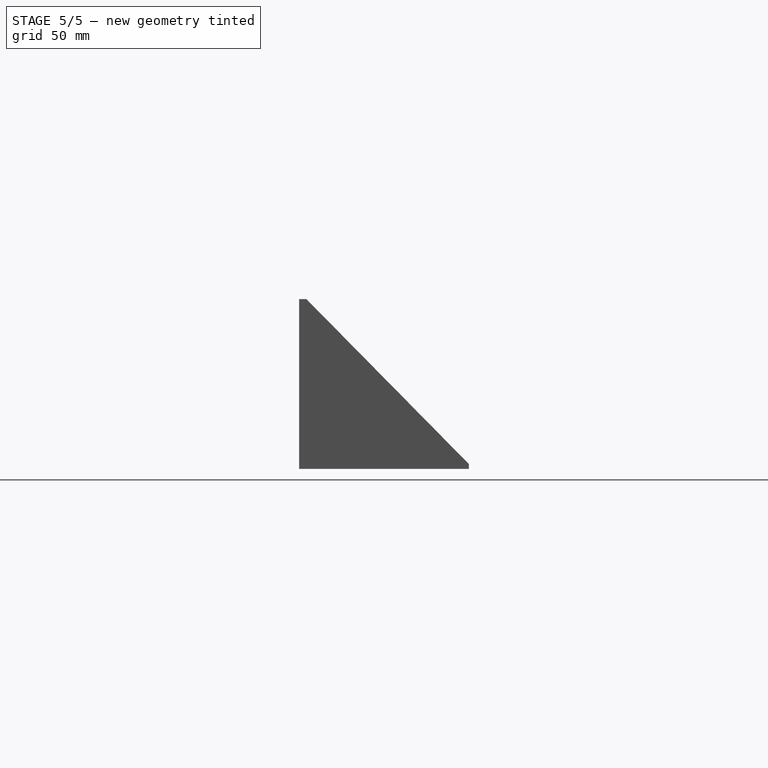
[diagram: stage 5 of 5 — right view after this stage's code; geometry added in this stage tinted green]
FEATURE [PartDesign::Chamfer] Chamfer001
  Angle = 45
  Base = -> Chamfer [Edge49,Edge50]
  BaseFeature = -> Chamfer
  ChamferType = 1
  FlipDirection = false
  Placement = pos=(0,0,0) rot=(1,0,0;1.5708rad)
  Size = 28
  Size2 = 67
  SupportTransform = false
FEATURE [PartDesign::Chamfer] Chamfer002  label="Scheiding"
  Angle = 45
  Base = -> Chamfer001 [Edge6,Edge14]
  BaseFeature = -> Chamfer001
  ChamferType = 1
  FlipDirection = false
  Placement = pos=(0,0,0) rot=(1,0,0;1.5708rad)
  Size = 68
  Size2 = 67
  SupportTransform = false
FEATURE [Sketcher::SketchObject] Sketch009
  ExternalGeometry = -> [Chamfer002]
  FullyConstrained = true
  MapMode = 5
  Placement = pos=(0,0,0) rot=(0.707107,0,-0.707107;3.14159rad)
  Support = -> [Chamfer002]
  sketch-geometry (5):
    g0: LineSegment StartX=-70 StartY=2.5 StartZ=0 EndX=0 EndY=2.5 EndZ=0
    g1: LineSegment StartX=0 StartY=2.5 StartZ=0 EndX=0 EndY=-67.5 EndZ=0
    g2: LineSegment StartX=0 StartY=-67.5 StartZ=0 EndX=-2 EndY=-67.5 EndZ=0
    g3: LineSegment StartX=-2 StartY=-67.5 StartZ=0 EndX=-70 EndY=-0.5 EndZ=0
    g4: LineSegment StartX=-70 StartY=-0.5 StartZ=0 EndX=-70 EndY=2.5 EndZ=0
  constraints (10):
    c: Coincident(g0,g-4)
    c: Coincident(g0,g-3)
    c: Coincident(g1,g0)
    c: Coincident(g1,g-7)
    c: Coincident(g2,g1)
    c: Coincident(g2,g-6)
    c: Coincident(g3,g2)
    c: Coincident(g3,g-6)
    c: Coincident(g4,g3)
    c: Coincident(g4,g0)
FEATURE [PartDesign::Pocket] Pocket
  BaseFeature = -> Chamfer002
  Length = 150
  Length2 = 100
  Placement = pos=(0,0,0) rot=(1,0,0;1.5708rad)
  Profile = -> Sketch009
  Type = 0
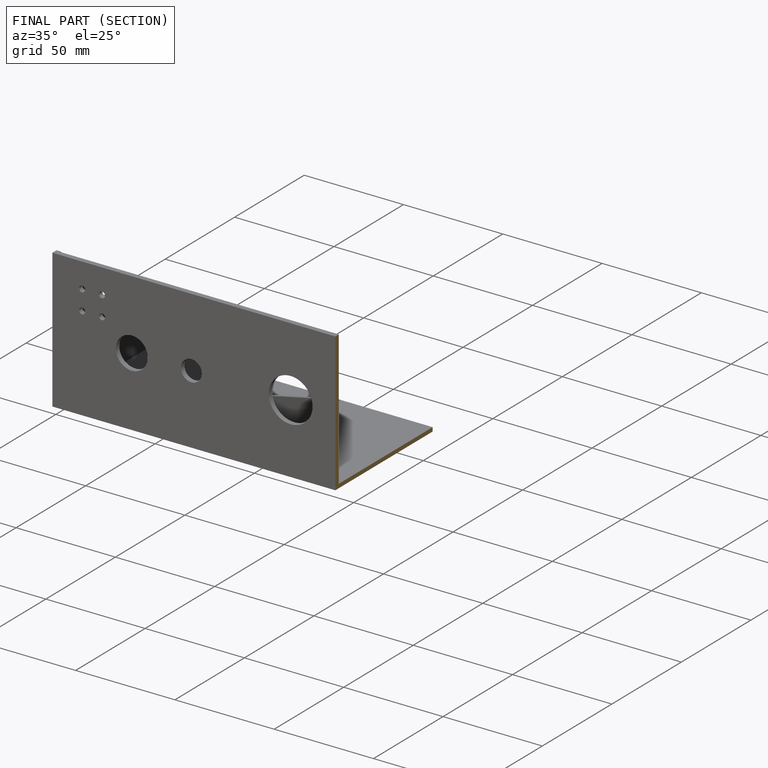
[diagram: finished part — half-section view (interior)]
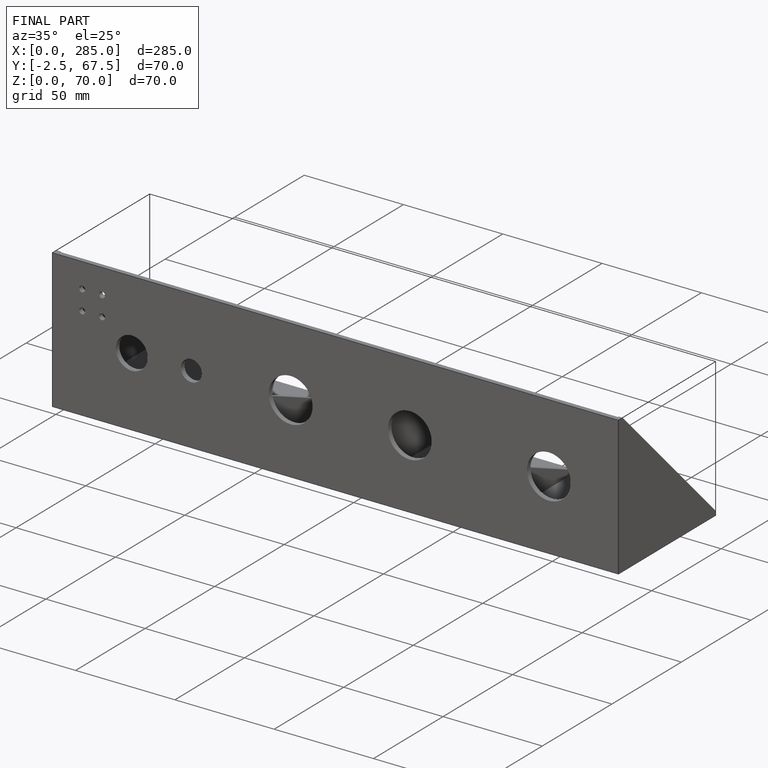
[diagram: finished part — iso view with bounding-box wireframe]
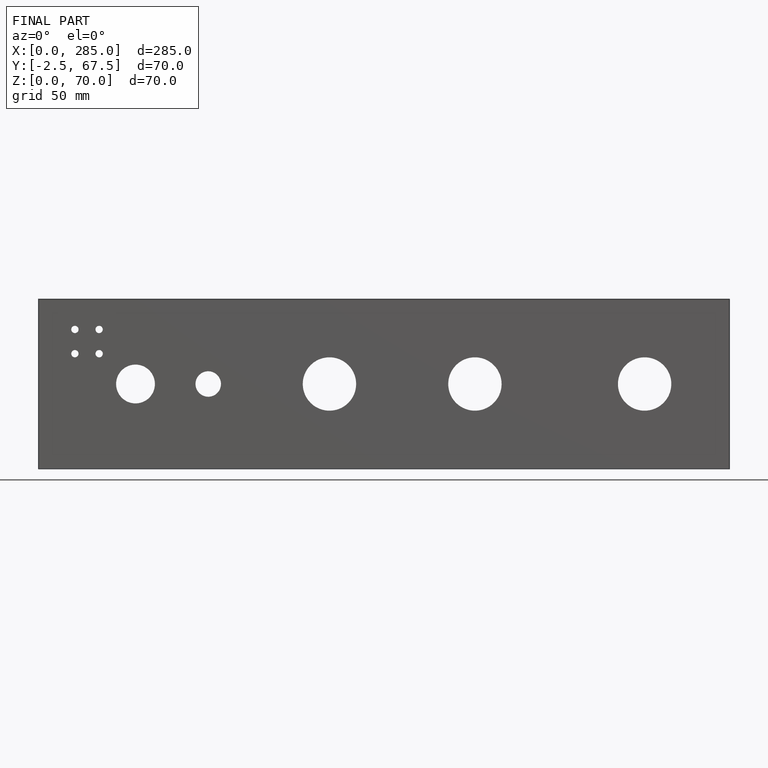
[diagram: finished part — front view with bounding-box wireframe]
